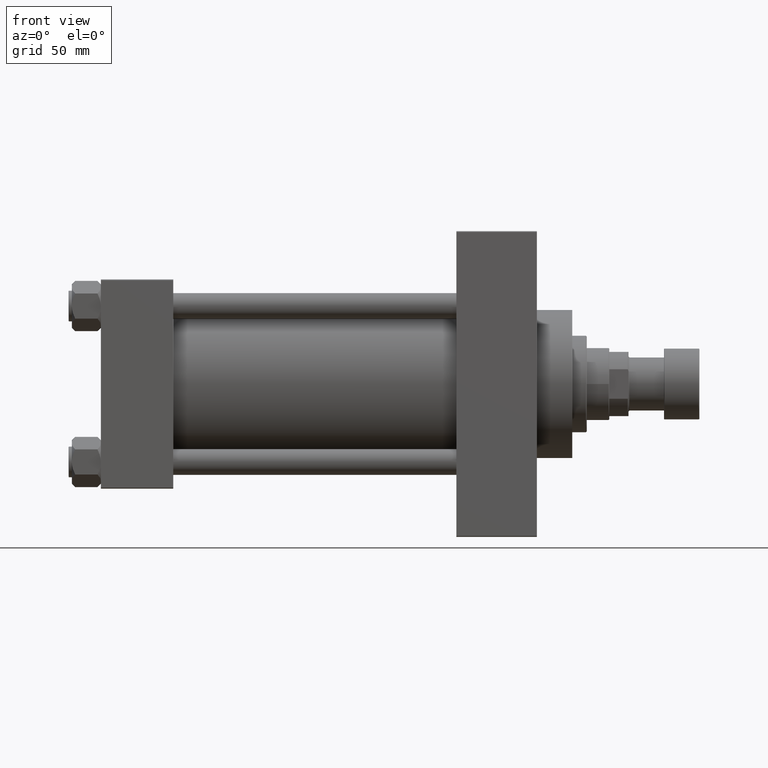
[diagram: clean part render]
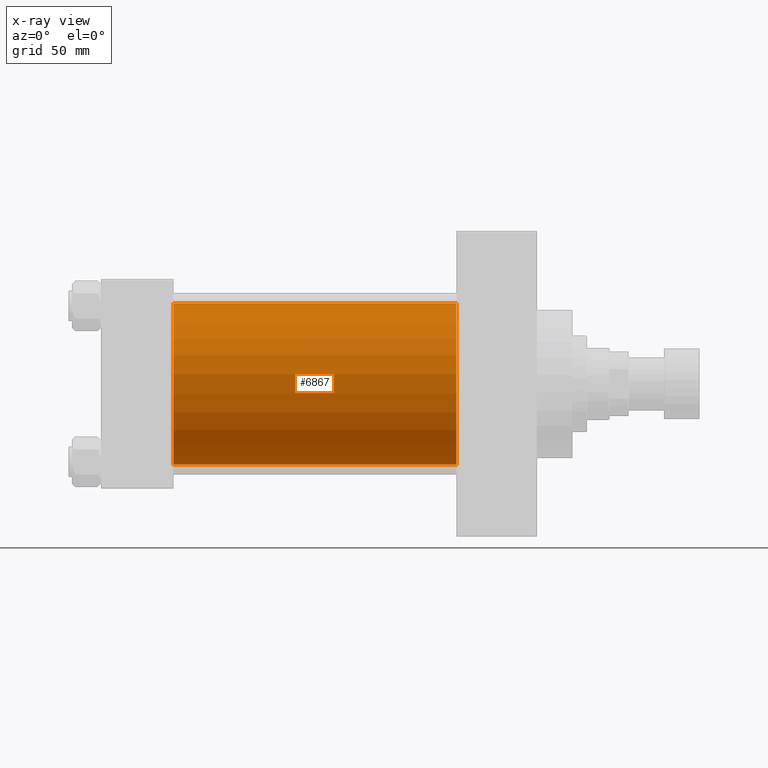
[diagram: x-ray — body ghosted, one internal face saturated and labeled with its STEP entity id]
A machine part, front view, then the same camera in x-ray: the body is ghosted and one INTERNAL B-rep face — a face not visible from any outside direction — is saturated and labeled: STEP entity #6867.
In plain terms, the highlighted cylindrical surface (partial cylindrical patch) has radius 50 mm, axis along (-1, -0, -0).
Its self-contained STEP definition (entity closure, byte-faithful):
#1200 = DIRECTION ( 'NONE',  ( -1.000000000000000000, -0.000000000000000000, -0.000000000000000000 ) ) ;
#1408 = CARTESIAN_POINT ( 'NONE',  ( 220.9999999999999716, 3.521148781771555838E-15, -50.00000000000000000 ) ) ;
#1528 = LINE ( 'NONE', #27074, #26802 ) ;
#2134 = DIRECTION ( 'NONE',  ( 0.000000000000000000, 0.000000000000000000, -1.000000000000000000 ) ) ;
#2731 = CARTESIAN_POINT ( 'NONE',  ( 45.00000000000000000, 3.521148781771555838E-15, -50.00000000000000000 ) ) ;
#3509 = AXIS2_PLACEMENT_3D ( 'NONE', #46869, #46635, #2134 ) ;
#4423 = DIRECTION ( 'NONE',  ( 0.000000000000000000, 0.000000000000000000, -1.000000000000000000 ) ) ;
#6867 = ADVANCED_FACE ( 'NONE', ( #19368 ), #30539, .F. ) ;
#8167 = DIRECTION ( 'NONE',  ( 0.000000000000000000, 0.000000000000000000, 1.000000000000000000 ) ) ;
#8257 = CARTESIAN_POINT ( 'NONE',  ( 220.9999999999999716, 3.521148781771555838E-15, -50.00000000000000000 ) ) ;
#8724 = LINE ( 'NONE', #8257, #22196 ) ;
#10515 = CIRCLE ( 'NONE', #3509, 50.00000000000000000 ) ;
#14289 = VERTEX_POINT ( 'NONE', #38801 ) ;
#15446 = ORIENTED_EDGE ( 'NONE', *, *, #45666, .F. ) ;
#15908 = EDGE_CURVE ( 'NONE', #47907, #45729, #8724, .T. ) ;
#19368 = FACE_OUTER_BOUND ( 'NONE', #45344, .T. ) ;
#20016 = DIRECTION ( 'NONE',  ( -1.000000000000000000, -0.000000000000000000, -0.000000000000000000 ) ) ;
#22196 = VECTOR ( 'NONE', #1200, 1000.000000000000000 ) ;
#23007 = CARTESIAN_POINT ( 'NONE',  ( 220.9999999999999716, -2.602085213965210642E-15, 0.000000000000000000 ) ) ;
#25814 = ORIENTED_EDGE ( 'NONE', *, *, #30883, .F. ) ;
#26802 = VECTOR ( 'NONE', #20016, 1000.000000000000000 ) ;
#27074 = CARTESIAN_POINT ( 'NONE',  ( 220.9999999999999716, -2.602085213965210642E-15, 50.00000000000000000 ) ) ;
#29804 = AXIS2_PLACEMENT_3D ( 'NONE', #23007, #41015, #8167 ) ;
#30215 = DIRECTION ( 'NONE',  ( 1.000000000000000000, 0.000000000000000000, 0.000000000000000000 ) ) ;
#30539 = CYLINDRICAL_SURFACE ( 'NONE', #29804, 50.00000000000000000 ) ;
#30883 = EDGE_CURVE ( 'NONE', #14289, #45729, #33454, .T. ) ;
#33320 = ORIENTED_EDGE ( 'NONE', *, *, #45396, .T. ) ;
#33454 = CIRCLE ( 'NONE', #43564, 50.00000000000000000 ) ;
#36618 = ORIENTED_EDGE ( 'NONE', *, *, #15908, .T. ) ;
#37823 = VERTEX_POINT ( 'NONE', #45444 ) ;
#38801 = CARTESIAN_POINT ( 'NONE',  ( 45.00000000000000000, -2.602085213965210642E-15, 50.00000000000000000 ) ) ;
#41015 = DIRECTION ( 'NONE',  ( -1.000000000000000000, -0.000000000000000000, -0.000000000000000000 ) ) ;
#41150 = CARTESIAN_POINT ( 'NONE',  ( 45.00000000000000000, -2.602085213965210642E-15, 0.000000000000000000 ) ) ;
#43564 = AXIS2_PLACEMENT_3D ( 'NONE', #41150, #30215, #4423 ) ;
#45344 = EDGE_LOOP ( 'NONE', ( #33320, #36618, #25814, #15446 ) ) ;
#45396 = EDGE_CURVE ( 'NONE', #37823, #47907, #10515, .T. ) ;
#45444 = CARTESIAN_POINT ( 'NONE',  ( 220.9999999999999716, -2.602085213965210642E-15, 50.00000000000000000 ) ) ;
#45666 = EDGE_CURVE ( 'NONE', #37823, #14289, #1528, .T. ) ;
#45729 = VERTEX_POINT ( 'NONE', #2731 ) ;
#46635 = DIRECTION ( 'NONE',  ( 1.000000000000000000, 0.000000000000000000, 0.000000000000000000 ) ) ;
#46869 = CARTESIAN_POINT ( 'NONE',  ( 220.9999999999999716, -2.602085213965210642E-15, 0.000000000000000000 ) ) ;
#47907 = VERTEX_POINT ( 'NONE', #1408 ) ;